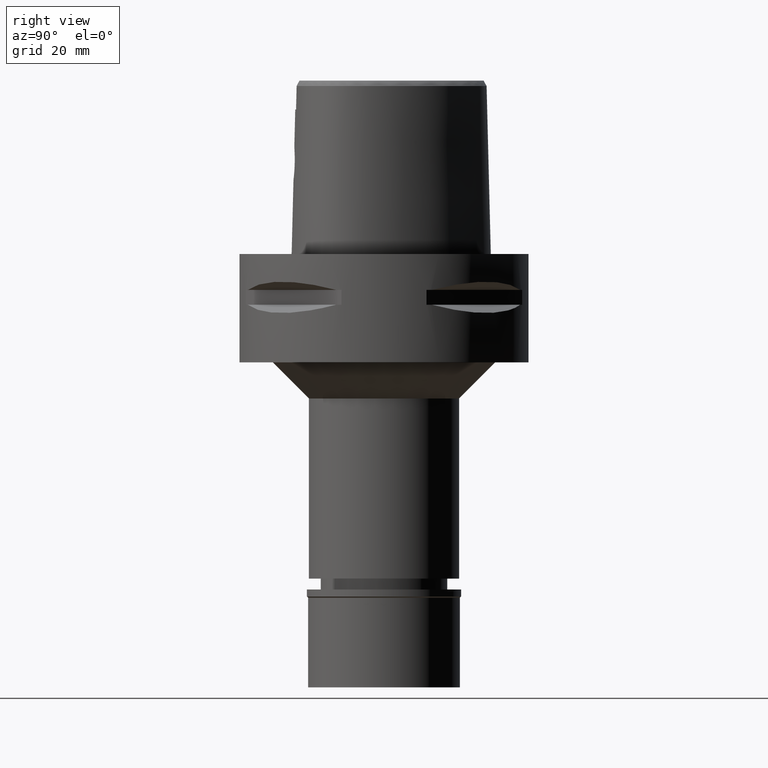
[diagram: clean part render]
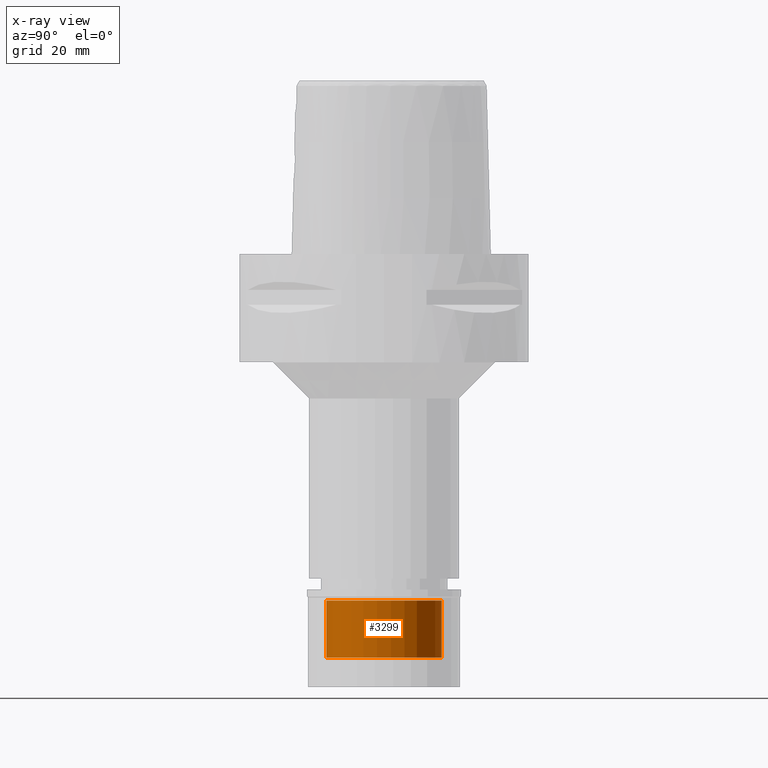
[diagram: x-ray — body ghosted, one internal face saturated and labeled with its STEP entity id]
A machine part, right view, then the same camera in x-ray: the body is ghosted and one INTERNAL B-rep face — a face not visible from any outside direction — is saturated and labeled: STEP entity #3299.
In plain terms, the highlighted cylindrical surface (partial cylindrical patch) has radius 16 mm, axis along (0, 0, -1).
Its self-contained STEP definition (entity closure, byte-faithful):
#30 = EDGE_LOOP ( 'NONE', ( #4920, #726, #730, #4846 ) ) ;
#238 = FACE_OUTER_BOUND ( 'NONE', #30, .T. ) ;
#264 = CARTESIAN_POINT ( 'NONE',  ( 0.0000000000000000000, -16.00000000000000000, -3.100000000000000089 ) ) ;
#365 = CARTESIAN_POINT ( 'NONE',  ( 0.0000000000000000000, 16.00000000000000000, -18.89999999999999858 ) ) ;
#446 = CARTESIAN_POINT ( 'NONE',  ( 0.0000000000000000000, -16.00000000000000000, -18.89999999999999858 ) ) ;
#522 = DIRECTION ( 'NONE',  ( 0.0000000000000000000, 0.0000000000000000000, 1.000000000000000000 ) ) ;
#617 = CARTESIAN_POINT ( 'NONE',  ( 0.0000000000000000000, 0.0000000000000000000, -18.89999999999999858 ) ) ;
#726 = ORIENTED_EDGE ( 'NONE', *, *, #4069, .T. ) ;
#730 = ORIENTED_EDGE ( 'NONE', *, *, #1279, .T. ) ;
#748 = VERTEX_POINT ( 'NONE', #264 ) ;
#838 = CARTESIAN_POINT ( 'NONE',  ( 0.0000000000000000000, 16.00000000000000000, -3.100000000000000089 ) ) ;
#916 = AXIS2_PLACEMENT_3D ( 'NONE', #617, #2103, #4759 ) ;
#955 = VERTEX_POINT ( 'NONE', #3702 ) ;
#1193 = CARTESIAN_POINT ( 'NONE',  ( 0.0000000000000000000, 0.0000000000000000000, -3.100000000000000089 ) ) ;
#1279 = EDGE_CURVE ( 'NONE', #748, #3767, #4876, .T. ) ;
#1484 = CARTESIAN_POINT ( 'NONE',  ( 0.0000000000000000000, 16.00000000000000000, -18.89999999999999858 ) ) ;
#1739 = AXIS2_PLACEMENT_3D ( 'NONE', #4890, #2982, #2411 ) ;
#1800 = CYLINDRICAL_SURFACE ( 'NONE', #1739, 16.00000000000000000 ) ;
#1979 = CIRCLE ( 'NONE', #916, 16.00000000000000000 ) ;
#2024 = DIRECTION ( 'NONE',  ( 0.0000000000000000000, -1.000000000000000000, 0.0000000000000000000 ) ) ;
#2103 = DIRECTION ( 'NONE',  ( 0.0000000000000000000, 0.0000000000000000000, -1.000000000000000000 ) ) ;
#2391 = EDGE_CURVE ( 'NONE', #2487, #955, #1979, .T. ) ;
#2392 = LINE ( 'NONE', #446, #3947 ) ;
#2411 = DIRECTION ( 'NONE',  ( 0.0000000000000000000, -1.000000000000000000, 0.0000000000000000000 ) ) ;
#2487 = VERTEX_POINT ( 'NONE', #365 ) ;
#2557 = VECTOR ( 'NONE', #3339, 1000.000000000000000 ) ;
#2583 = LINE ( 'NONE', #1484, #2557 ) ;
#2857 = EDGE_CURVE ( 'NONE', #2487, #3767, #2583, .T. ) ;
#2982 = DIRECTION ( 'NONE',  ( 0.0000000000000000000, 0.0000000000000000000, -1.000000000000000000 ) ) ;
#3299 = ADVANCED_FACE ( 'NONE', ( #238 ), #1800, .F. ) ;
#3339 = DIRECTION ( 'NONE',  ( 0.0000000000000000000, 0.0000000000000000000, 1.000000000000000000 ) ) ;
#3558 = DIRECTION ( 'NONE',  ( 0.0000000000000000000, 0.0000000000000000000, 1.000000000000000000 ) ) ;
#3702 = CARTESIAN_POINT ( 'NONE',  ( 0.0000000000000000000, -16.00000000000000000, -18.89999999999999858 ) ) ;
#3767 = VERTEX_POINT ( 'NONE', #838 ) ;
#3947 = VECTOR ( 'NONE', #522, 1000.000000000000000 ) ;
#4069 = EDGE_CURVE ( 'NONE', #955, #748, #2392, .T. ) ;
#4759 = DIRECTION ( 'NONE',  ( 0.0000000000000000000, 1.000000000000000000, 0.0000000000000000000 ) ) ;
#4797 = AXIS2_PLACEMENT_3D ( 'NONE', #1193, #3558, #2024 ) ;
#4846 = ORIENTED_EDGE ( 'NONE', *, *, #2857, .F. ) ;
#4876 = CIRCLE ( 'NONE', #4797, 16.00000000000000000 ) ;
#4890 = CARTESIAN_POINT ( 'NONE',  ( 0.0000000000000000000, 0.0000000000000000000, 0.0000000000000000000 ) ) ;
#4920 = ORIENTED_EDGE ( 'NONE', *, *, #2391, .T. ) ;